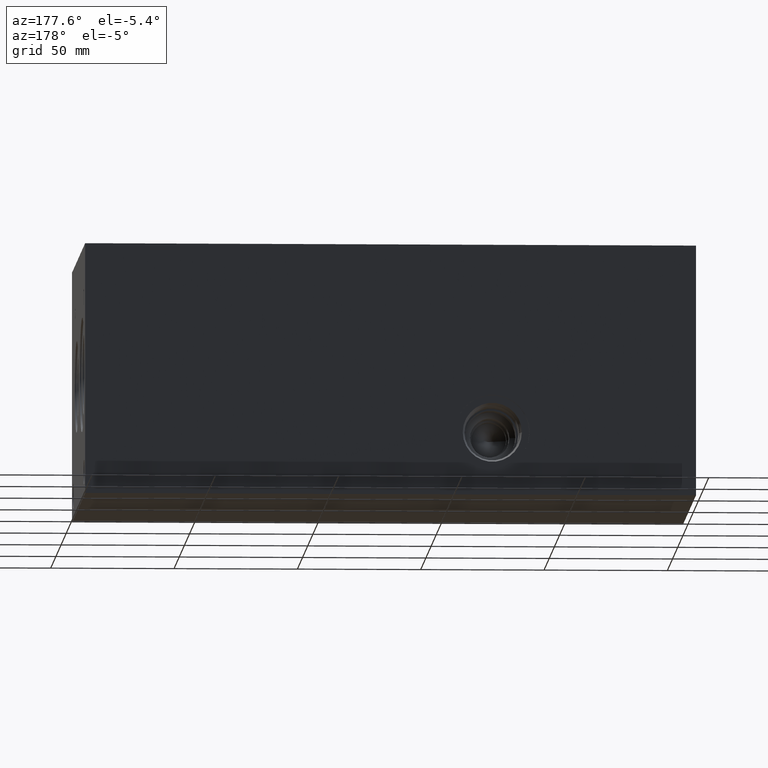
[diagram: clean part render]
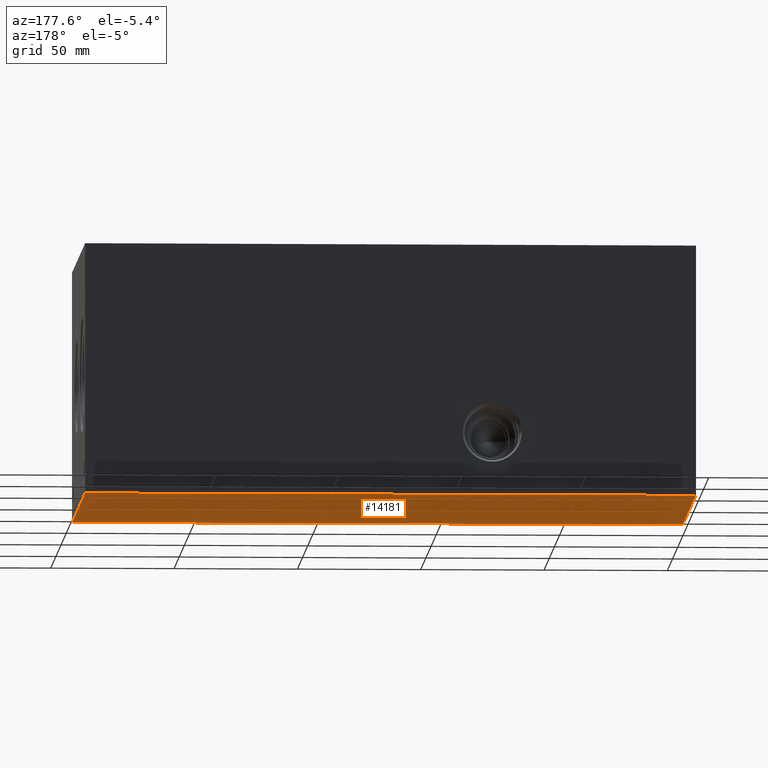
[diagram: same view with one face highlighted and labeled with its STEP entity id]
A machine part, auxiliary view. The second image highlights one B-rep face of the part: STEP entity #14181.
In plain terms, the highlighted planar face has unit normal (0, 0, 1).
Its self-contained STEP definition (entity closure, byte-faithful):
#1913=FACE_OUTER_BOUND('',#2769,.T.);
#2769=EDGE_LOOP('',(#12530,#12531,#12532,#12533));
#2803=LINE('',#18163,#4054);
#3094=LINE('',#19672,#4345);
#3153=LINE('',#19944,#4404);
#4019=LINE('',#24578,#5270);
#4054=VECTOR('',#15138,10.);
#4345=VECTOR('',#15499,10.);
#4404=VECTOR('',#15612,10.);
#5270=VECTOR('',#18082,10.);
#5294=VERTEX_POINT('',#18161);
#5295=VERTEX_POINT('',#18162);
#5706=VERTEX_POINT('',#19671);
#5764=VERTEX_POINT('',#19943);
#6672=EDGE_CURVE('',#5294,#5295,#2803,.T.);
#7124=EDGE_CURVE('',#5295,#5706,#3094,.T.);
#7207=EDGE_CURVE('',#5764,#5294,#3153,.T.);
#8602=EDGE_CURVE('',#5706,#5764,#4019,.T.);
#12530=ORIENTED_EDGE('',*,*,#6672,.F.);
#12531=ORIENTED_EDGE('',*,*,#7207,.F.);
#12532=ORIENTED_EDGE('',*,*,#8602,.F.);
#12533=ORIENTED_EDGE('',*,*,#7124,.F.);
#12931=PLANE('',#15076);
#14181=ADVANCED_FACE('',(#1913),#12931,.F.);
#15076=AXIS2_PLACEMENT_3D('',#24583,#18090,#18091);
#15138=DIRECTION('',(1.,0.,0.));
#15499=DIRECTION('',(0.,1.,0.));
#15612=DIRECTION('',(0.,-1.,0.));
#18082=DIRECTION('',(-1.,0.,0.));
#18090=DIRECTION('center_axis',(0.,0.,1.));
#18091=DIRECTION('ref_axis',(1.,0.,0.));
#18161=CARTESIAN_POINT('',(0.,0.,0.));
#18162=CARTESIAN_POINT('',(247.65,0.,0.));
#18163=CARTESIAN_POINT('',(0.,0.,0.));
#19671=CARTESIAN_POINT('',(247.65,127.,0.));
#19672=CARTESIAN_POINT('',(247.65,0.,0.));
#19943=CARTESIAN_POINT('',(0.,127.,0.));
#19944=CARTESIAN_POINT('',(0.,127.,0.));
#24578=CARTESIAN_POINT('',(247.65,127.,0.));
#24583=CARTESIAN_POINT('Origin',(123.825,63.5,0.));